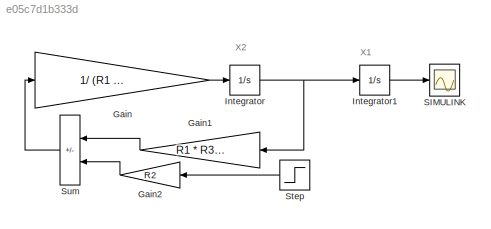
MODEL slx_e05c7d1b333d
KIND model
CONFIG AbsTol = auto
CONFIG EnableMultiTasking = off
CONFIG FixedStep = auto
CONFIG InitFcn = R1=5e6;\nR2=R1;\nR3=R1;\nC1=100e-9;\nC2=C1;\n
CONFIG MaxStep = auto
CONFIG MinStep = auto
CONFIG RelTol = 1e-3
CONFIG SampleTimeConstraint = Unconstrained
CONFIG SolverName = VariableStepAuto
CONFIG StartTime = 0.0
CONFIG StopTime = 2
BLOCK [Gain] Gain
  Gain = 1/ (R1 * R2 * R3 * C1 * C2)
BLOCK [Gain] Gain1
  Gain = R1 * R3 * C2
  NameLocation = top
BLOCK [Gain] Gain2
  Gain = R2
  NameLocation = top
BLOCK [Integrator] Integrator
BLOCK [Integrator] Integrator1
BLOCK [Scope] SIMULINK
  Floating = off
  NumInputPorts = 1
  ScopeSpecificationString = Simulink.scopes.TimeScopeBlockCfg('CurrentConfiguration', extmgr.ConfigurationSet(extmgr.Configuration('Core','General UI',true),extmgr.Configuration('Core','Source UI',true),extmgr.Configuration('Sources','WiredSimulink',true),extmgr.Configuration('Visuals','Time Domain',true,'SerializedDisplays',{struct('MinYLimReal','-1.88552','MaxYLimReal','16.9697','YLabelReal','','MinYLimMag','0.00000','MaxY...<+1455ch>
BLOCK [Step] Step
  After = 5
  NameLocation = top
  SampleTime = 0
  Time = 0
BLOCK [Sum] Sum
  IconShape = rectangular
  Inputs = |-+
  NameLocation = top
ANNOTATION (root): X1
ANNOTATION (root): X2
LINE Gain1:1 -> Sum:1
LINE Gain2:1 -> Sum:2
LINE Gain:1 -> Integrator:1
LINE Integrator1:1 -> SIMULINK:1
NET Integrator:1 -> Gain1:1, Integrator1:1
LINE Step:1 -> Gain2:1
LINE Sum:1 -> Gain:1
note: NET lines group one-source signal fan-out (src -> all destinations, sorted); 1:1 wires keep LINE
